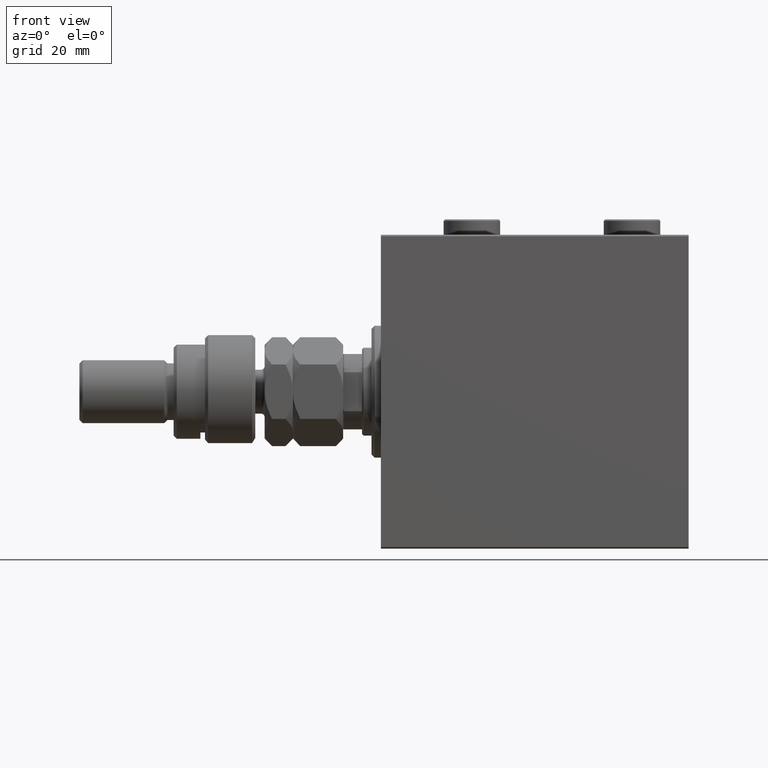
[diagram: clean part render]
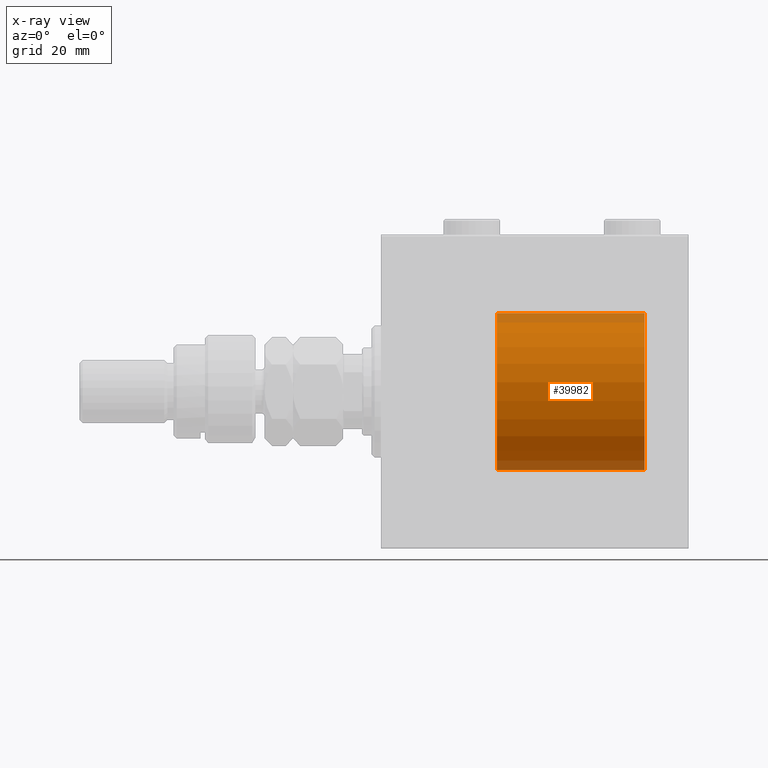
[diagram: x-ray — body ghosted, one internal face saturated and labeled with its STEP entity id]
A machine part, front view, then the same camera in x-ray: the body is ghosted and one INTERNAL B-rep face — a face not visible from any outside direction — is saturated and labeled: STEP entity #39982.
In plain terms, the highlighted cylindrical surface (partial cylindrical patch) has radius 25 mm, axis along (1, -0, -0).
Its self-contained STEP definition (entity closure, byte-faithful):
#950 = CARTESIAN_POINT ( 'NONE',  ( 25.00000000000000000, 3.061616997868383043E-15, 0.000000000000000000 ) ) ;
#2675 = CARTESIAN_POINT ( 'NONE',  ( 0.000000000000000000, 0.000000000000000000, 0.000000000000000000 ) ) ;
#2839 = ORIENTED_EDGE ( 'NONE', *, *, #29357, .T. ) ;
#7899 = ORIENTED_EDGE ( 'NONE', *, *, #28437, .F. ) ;
#8917 = CIRCLE ( 'NONE', #15894, 25.00000000000000000 ) ;
#9794 = VECTOR ( 'NONE', #12649, 1000.000000000000000 ) ;
#9976 = DIRECTION ( 'NONE',  ( 0.000000000000000000, 0.000000000000000000, 1.000000000000000000 ) ) ;
#12649 = DIRECTION ( 'NONE',  ( -0.000000000000000000, -0.000000000000000000, -1.000000000000000000 ) ) ;
#13224 = DIRECTION ( 'NONE',  ( -0.000000000000000000, -0.000000000000000000, -1.000000000000000000 ) ) ;
#13310 = ORIENTED_EDGE ( 'NONE', *, *, #47409, .F. ) ;
#13517 = ORIENTED_EDGE ( 'NONE', *, *, #35085, .T. ) ;
#15719 = VERTEX_POINT ( 'NONE', #950 ) ;
#15894 = AXIS2_PLACEMENT_3D ( 'NONE', #2675, #9976, #29429 ) ;
#16295 = LINE ( 'NONE', #27955, #9794 ) ;
#19524 = AXIS2_PLACEMENT_3D ( 'NONE', #31413, #23627, #24585 ) ;
#20323 = CIRCLE ( 'NONE', #19524, 25.00000000000000000 ) ;
#22868 = FACE_OUTER_BOUND ( 'NONE', #40091, .T. ) ;
#23627 = DIRECTION ( 'NONE',  ( 0.000000000000000000, 0.000000000000000000, 1.000000000000000000 ) ) ;
#24585 = DIRECTION ( 'NONE',  ( 1.000000000000000000, 0.000000000000000000, 0.000000000000000000 ) ) ;
#25121 = VERTEX_POINT ( 'NONE', #43789 ) ;
#27224 = CARTESIAN_POINT ( 'NONE',  ( 0.000000000000000000, 0.000000000000000000, 47.00000000000000000 ) ) ;
#27316 = CARTESIAN_POINT ( 'NONE',  ( -25.00000000000000000, 0.000000000000000000, 47.00000000000000000 ) ) ;
#27830 = CARTESIAN_POINT ( 'NONE',  ( -25.00000000000000000, 0.000000000000000000, 47.00000000000000000 ) ) ;
#27955 = CARTESIAN_POINT ( 'NONE',  ( 25.00000000000000000, 3.061616997868383043E-15, 47.00000000000000000 ) ) ;
#28437 = EDGE_CURVE ( 'NONE', #25121, #15719, #16295, .T. ) ;
#29357 = EDGE_CURVE ( 'NONE', #38769, #15719, #8917, .T. ) ;
#29429 = DIRECTION ( 'NONE',  ( 1.000000000000000000, 0.000000000000000000, 0.000000000000000000 ) ) ;
#30175 = DIRECTION ( 'NONE',  ( -0.000000000000000000, -0.000000000000000000, -1.000000000000000000 ) ) ;
#30411 = DIRECTION ( 'NONE',  ( -1.000000000000000000, 0.000000000000000000, 0.000000000000000000 ) ) ;
#31413 = CARTESIAN_POINT ( 'NONE',  ( 0.000000000000000000, 0.000000000000000000, 47.00000000000000000 ) ) ;
#31472 = CARTESIAN_POINT ( 'NONE',  ( -25.00000000000000000, 0.000000000000000000, 0.000000000000000000 ) ) ;
#31974 = LINE ( 'NONE', #27830, #44107 ) ;
#35085 = EDGE_CURVE ( 'NONE', #36861, #38769, #31974, .T. ) ;
#36861 = VERTEX_POINT ( 'NONE', #27316 ) ;
#38769 = VERTEX_POINT ( 'NONE', #31472 ) ;
#39982 = ADVANCED_FACE ( 'NONE', ( #22868 ), #42109, .T. ) ;
#40091 = EDGE_LOOP ( 'NONE', ( #7899, #13310, #13517, #2839 ) ) ;
#42109 = CYLINDRICAL_SURFACE ( 'NONE', #47340, 25.00000000000000000 ) ;
#43789 = CARTESIAN_POINT ( 'NONE',  ( 25.00000000000000000, 3.061616997868383043E-15, 47.00000000000000000 ) ) ;
#44107 = VECTOR ( 'NONE', #13224, 1000.000000000000000 ) ;
#47340 = AXIS2_PLACEMENT_3D ( 'NONE', #27224, #30175, #30411 ) ;
#47409 = EDGE_CURVE ( 'NONE', #36861, #25121, #20323, .T. ) ;